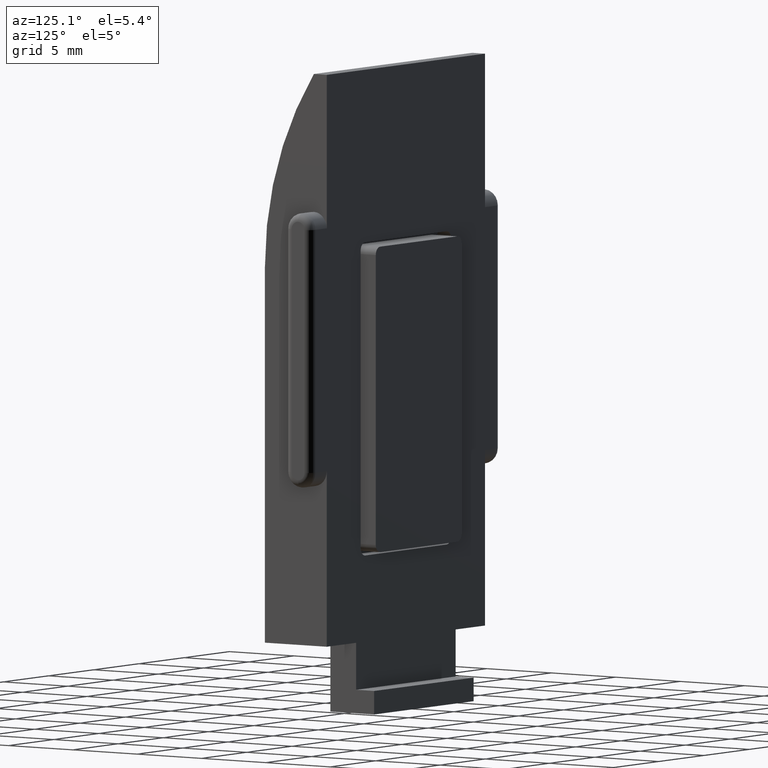
[diagram: clean part render]
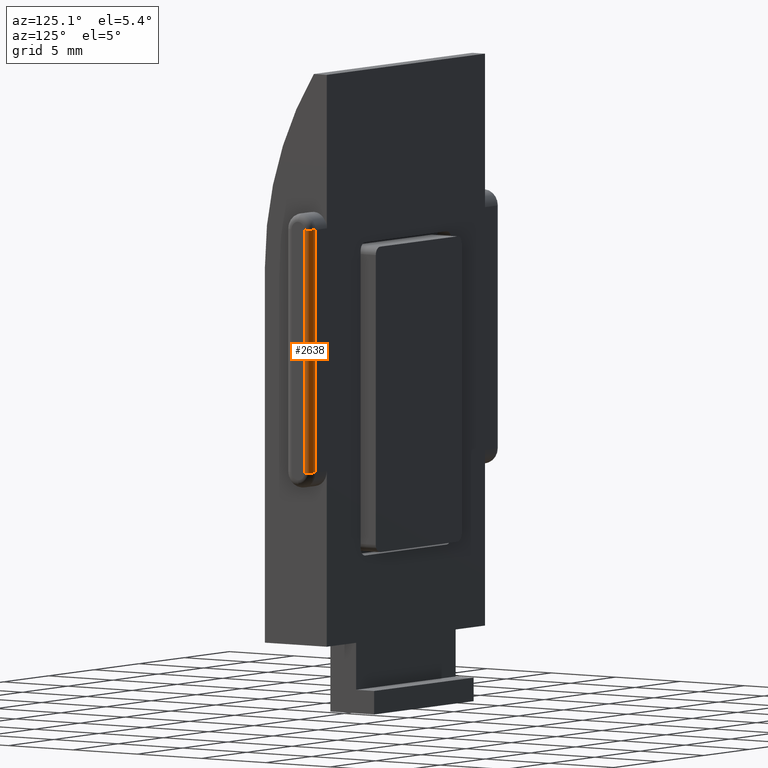
[diagram: same view with one face highlighted and labeled with its STEP entity id]
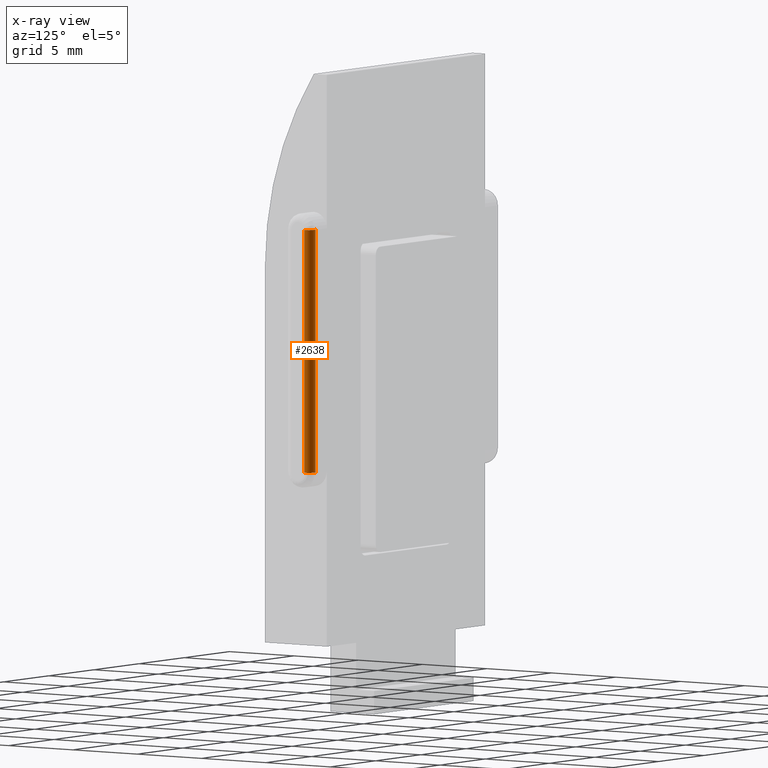
[diagram: x-ray of the same camera — body ghosted, the highlighted face saturated]
A machine part, auxiliary view. The second image highlights one B-rep face of the part: STEP entity #2638.
The next image is the same camera in x-ray: the body ghosted, the highlighted face saturated — about 0% of this face is hidden behind the body in this view.
In plain terms, the highlighted cylindrical surface (edge-blend (fillet) strip) has radius 0.5 mm, axis along (0, 0, -1).
Its self-contained STEP definition (entity closure, byte-faithful):
#405 = DIRECTION ( 'NONE',  ( 1.000000000000000000, 0.0000000000000000000, 0.0000000000000000000 ) ) ;
#529 = CARTESIAN_POINT ( 'NONE',  ( 10.00000000000000000, 4.299999999999996300, 11.21000000000000100 ) ) ;
#649 = CARTESIAN_POINT ( 'NONE',  ( 10.00000000000000000, 4.799999999999998900, 26.71000000000000100 ) ) ;
#1729 = EDGE_CURVE ( 'NONE', #9511, #5870, #4325, .T. ) ;
#2300 = ORIENTED_EDGE ( 'NONE', *, *, #1729, .T. ) ;
#2372 = CYLINDRICAL_SURFACE ( 'NONE', #6136, 0.5000000000000004400 ) ;
#2445 = CARTESIAN_POINT ( 'NONE',  ( 10.00000000000000000, 4.299999999999996300, 26.71000000000000100 ) ) ;
#2481 = DIRECTION ( 'NONE',  ( 0.0000000000000000000, 1.317178037947461600E-016, -1.000000000000000000 ) ) ;
#2595 = DIRECTION ( 'NONE',  ( 0.0000000000000000000, 1.000000000000000000, 0.0000000000000000000 ) ) ;
#2603 = AXIS2_PLACEMENT_3D ( 'NONE', #529, #2881, #405 ) ;
#2638 = ADVANCED_FACE ( 'NONE', ( #4551 ), #2372, .T. ) ;
#2735 = EDGE_CURVE ( 'NONE', #9511, #9141, #5570, .T. ) ;
#2881 = DIRECTION ( 'NONE',  ( 0.0000000000000000000, 0.0000000000000000000, 1.000000000000000000 ) ) ;
#3648 = CARTESIAN_POINT ( 'NONE',  ( 10.00000000000000000, 4.799999999999998000, 11.21000000000000100 ) ) ;
#3717 = EDGE_CURVE ( 'NONE', #9898, #9141, #8912, .T. ) ;
#3731 = AXIS2_PLACEMENT_3D ( 'NONE', #4692, #9645, #10391 ) ;
#3864 = CARTESIAN_POINT ( 'NONE',  ( 10.50000000000000000, 4.299999999999996300, 26.71000000000000100 ) ) ;
#4275 = VECTOR ( 'NONE', #9656, 1000.000000000000000 ) ;
#4325 = CIRCLE ( 'NONE', #3731, 0.5000000000000004400 ) ;
#4551 = FACE_OUTER_BOUND ( 'NONE', #7169, .T. ) ;
#4692 = CARTESIAN_POINT ( 'NONE',  ( 10.00000000000000000, 4.299999999999998000, 26.71000000000000100 ) ) ;
#4789 = LINE ( 'NONE', #3864, #4275 ) ;
#5015 = CARTESIAN_POINT ( 'NONE',  ( 10.00000000000000000, 4.799999999999997200, 11.21000000000000100 ) ) ;
#5153 = CARTESIAN_POINT ( 'NONE',  ( 10.50000000000000000, 4.299999999999996300, 11.21000000000000100 ) ) ;
#5298 = DIRECTION ( 'NONE',  ( -0.0000000000000000000, 1.317178037947461600E-016, -1.000000000000000000 ) ) ;
#5570 = LINE ( 'NONE', #3648, #8664 ) ;
#5870 = VERTEX_POINT ( 'NONE', #9741 ) ;
#6136 = AXIS2_PLACEMENT_3D ( 'NONE', #2445, #2481, #2595 ) ;
#7169 = EDGE_LOOP ( 'NONE', ( #8612, #8395, #2300, #7259 ) ) ;
#7259 = ORIENTED_EDGE ( 'NONE', *, *, #8707, .F. ) ;
#8395 = ORIENTED_EDGE ( 'NONE', *, *, #2735, .F. ) ;
#8612 = ORIENTED_EDGE ( 'NONE', *, *, #3717, .T. ) ;
#8664 = VECTOR ( 'NONE', #5298, 1000.000000000000000 ) ;
#8707 = EDGE_CURVE ( 'NONE', #9898, #5870, #4789, .T. ) ;
#8912 = CIRCLE ( 'NONE', #2603, 0.5000000000000004400 ) ;
#9141 = VERTEX_POINT ( 'NONE', #5015 ) ;
#9511 = VERTEX_POINT ( 'NONE', #649 ) ;
#9645 = DIRECTION ( 'NONE',  ( 0.0000000000000000000, 0.0000000000000000000, -1.000000000000000000 ) ) ;
#9656 = DIRECTION ( 'NONE',  ( 0.0000000000000000000, -1.317178037947461600E-016, 1.000000000000000000 ) ) ;
#9741 = CARTESIAN_POINT ( 'NONE',  ( 10.50000000000000000, 4.299999999999998000, 26.71000000000000100 ) ) ;
#9898 = VERTEX_POINT ( 'NONE', #5153 ) ;
#10391 = DIRECTION ( 'NONE',  ( -1.000000000000000000, 0.0000000000000000000, 0.0000000000000000000 ) ) ;